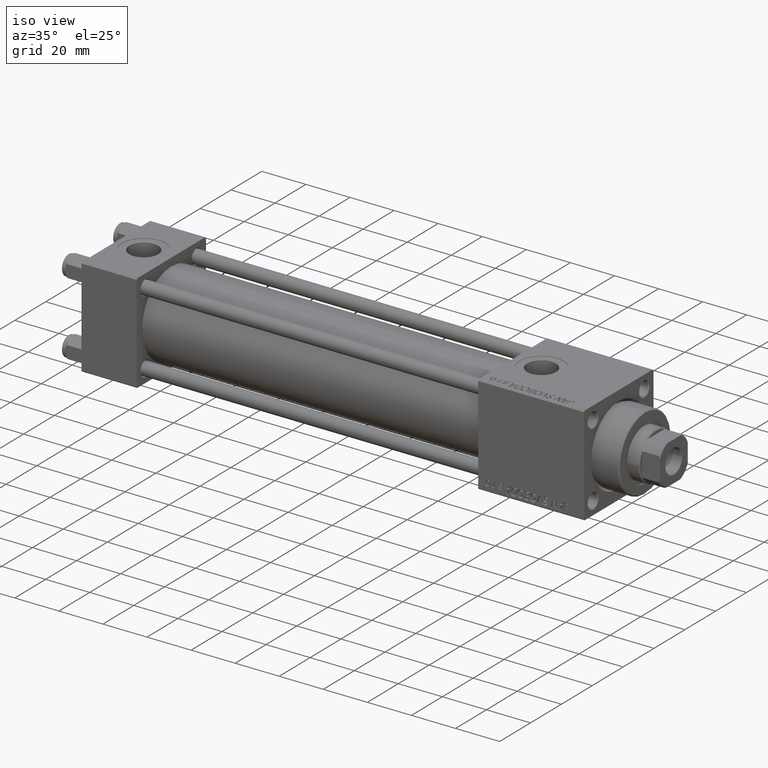
[diagram: clean part render]
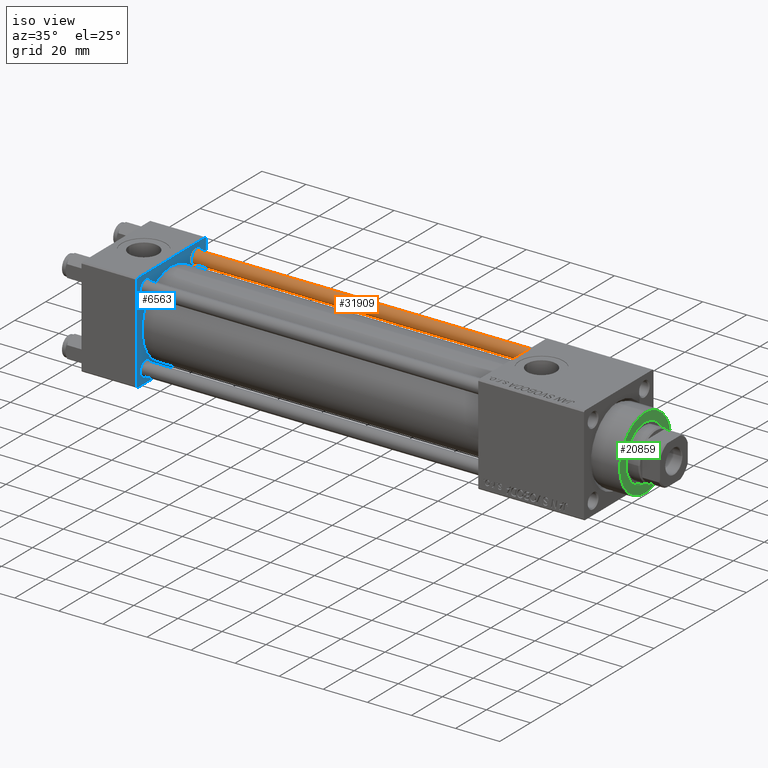
[diagram: same view with three faces highlighted in distinct colors, each labeled with its STEP entity id]
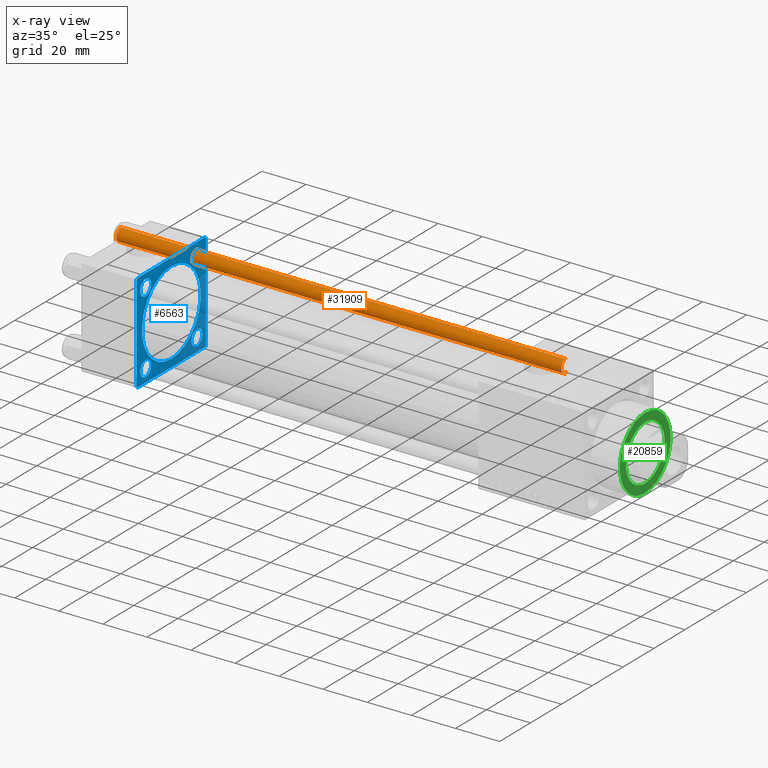
[diagram: x-ray of the same camera — body ghosted, the three highlighted faces saturated]
A machine part, iso view with three faces highlighted in distinct colors.
The next image is the same camera in x-ray (body ghosted, the three faces saturated) — at least one of them is partly hidden behind the body in this view.
Their STEP definitions:

[orange] entity #31909 — the highlighted cylindrical surface (edge-blend (fillet) strip) has radius 3 mm, axis along (-1, 0, 0).
#705 = VERTEX_POINT ( 'NONE', #16305 ) ;
#1947 = VERTEX_POINT ( 'NONE', #28889 ) ;
#3213 = ORIENTED_EDGE ( 'NONE', *, *, #46983, .T. ) ;
#3288 = EDGE_CURVE ( 'NONE', #12715, #42295, #29601, .T. ) ;
#5066 = ORIENTED_EDGE ( 'NONE', *, *, #45666, .F. ) ;
#7607 = LINE ( 'NONE', #8389, #25537 ) ;
#8389 = CARTESIAN_POINT ( 'NONE',  ( -3.000000000000000444, 0.000000000000000000, 203.0000000000000000 ) ) ;
#9184 = CARTESIAN_POINT ( 'NONE',  ( 3.000000000000000444, 3.673940397442059868E-16, 0.5000000000001114664 ) ) ;
#11752 = VECTOR ( 'NONE', #18375, 1000.000000000000000 ) ;
#12715 = VERTEX_POINT ( 'NONE', #26862 ) ;
#15765 = DIRECTION ( 'NONE',  ( 1.000000000000000000, 0.000000000000000000, 0.000000000000000000 ) ) ;
#16305 = CARTESIAN_POINT ( 'NONE',  ( -3.000000000000000444, 0.000000000000000000, 202.5000000000000853 ) ) ;
#17012 = CIRCLE ( 'NONE', #36401, 3.000000000000000444 ) ;
#18375 = DIRECTION ( 'NONE',  ( -0.000000000000000000, -0.000000000000000000, -1.000000000000000000 ) ) ;
#19369 = CARTESIAN_POINT ( 'NONE',  ( 0.000000000000000000, 0.000000000000000000, 0.5000000000001114664 ) ) ;
#21055 = ORIENTED_EDGE ( 'NONE', *, *, #3288, .T. ) ;
#22129 = EDGE_LOOP ( 'NONE', ( #5066, #3213, #37280, #21055 ) ) ;
#24565 = AXIS2_PLACEMENT_3D ( 'NONE', #19369, #35443, #51514 ) ;
#25537 = VECTOR ( 'NONE', #48220, 1000.000000000000000 ) ;
#26568 = EDGE_CURVE ( 'NONE', #705, #12715, #7607, .T. ) ;
#26862 = CARTESIAN_POINT ( 'NONE',  ( -3.000000000000000444, 0.000000000000000000, 0.5000000000001114664 ) ) ;
#28889 = CARTESIAN_POINT ( 'NONE',  ( 3.000000000000000444, 3.673940397442059868E-16, 202.5000000000000853 ) ) ;
#29601 = CIRCLE ( 'NONE', #24565, 3.000000000000000444 ) ;
#29724 = LINE ( 'NONE', #49742, #11752 ) ;
#31331 = DIRECTION ( 'NONE',  ( 0.000000000000000000, 0.000000000000000000, -1.000000000000000000 ) ) ;
#31909 = ADVANCED_FACE ( 'NONE', ( #37421 ), #38185, .T. ) ;
#33975 = CARTESIAN_POINT ( 'NONE',  ( 0.000000000000000000, 0.000000000000000000, 203.0000000000000000 ) ) ;
#35443 = DIRECTION ( 'NONE',  ( -0.000000000000000000, -0.000000000000000000, 1.000000000000000000 ) ) ;
#36401 = AXIS2_PLACEMENT_3D ( 'NONE', #38973, #31331, #15765 ) ;
#37280 = ORIENTED_EDGE ( 'NONE', *, *, #26568, .T. ) ;
#37421 = FACE_OUTER_BOUND ( 'NONE', #22129, .T. ) ;
#37923 = DIRECTION ( 'NONE',  ( -0.000000000000000000, -0.000000000000000000, -1.000000000000000000 ) ) ;
#38185 = CYLINDRICAL_SURFACE ( 'NONE', #51000, 3.000000000000000444 ) ;
#38973 = CARTESIAN_POINT ( 'NONE',  ( 0.000000000000000000, 0.000000000000000000, 202.5000000000000853 ) ) ;
#42295 = VERTEX_POINT ( 'NONE', #9184 ) ;
#45666 = EDGE_CURVE ( 'NONE', #1947, #42295, #29724, .T. ) ;
#45839 = DIRECTION ( 'NONE',  ( -1.000000000000000000, 0.000000000000000000, 0.000000000000000000 ) ) ;
#46983 = EDGE_CURVE ( 'NONE', #1947, #705, #17012, .T. ) ;
#48220 = DIRECTION ( 'NONE',  ( -0.000000000000000000, -0.000000000000000000, -1.000000000000000000 ) ) ;
#49742 = CARTESIAN_POINT ( 'NONE',  ( 3.000000000000000444, 3.673940397442059868E-16, 203.0000000000000000 ) ) ;
#51000 = AXIS2_PLACEMENT_3D ( 'NONE', #33975, #37923, #45839 ) ;
#51514 = DIRECTION ( 'NONE',  ( 1.000000000000000000, 0.000000000000000000, 0.000000000000000000 ) ) ;

[blue] entity #6563 — the highlighted planar face has unit normal (-1, 0, 0).
#195 = ORIENTED_EDGE ( 'NONE', *, *, #29900, .T. ) ;
#254 = ORIENTED_EDGE ( 'NONE', *, *, #37313, .F. ) ;
#560 = DIRECTION ( 'NONE',  ( -1.000000000000000000, 0.000000000000000000, -0.000000000000000000 ) ) ;
#719 = CARTESIAN_POINT ( 'NONE',  ( 25.00000000000000000, 22.50000000000000000, 21.99999999999999645 ) ) ;
#765 = CARTESIAN_POINT ( 'NONE',  ( 25.00000000000000000, 22.50000000000000000, -21.99999999999996803 ) ) ;
#1229 = EDGE_CURVE ( 'NONE', #30752, #23117, #39581, .T. ) ;
#2399 = EDGE_LOOP ( 'NONE', ( #4211, #254 ) ) ;
#2474 = DIRECTION ( 'NONE',  ( 0.000000000000000000, 0.000000000000000000, 1.000000000000000000 ) ) ;
#2737 = CARTESIAN_POINT ( 'NONE',  ( 25.00000000000000000, -16.59999999999999076, -16.60000000000000853 ) ) ;
#3064 = AXIS2_PLACEMENT_3D ( 'NONE', #17935, #42959, #50351 ) ;
#4195 = EDGE_CURVE ( 'NONE', #10037, #34024, #5180, .T. ) ;
#4211 = ORIENTED_EDGE ( 'NONE', *, *, #45188, .F. ) ;
#4625 = CARTESIAN_POINT ( 'NONE',  ( 25.00000000000000000, 21.99999999999999289, 22.50000000000000355 ) ) ;
#5180 = CIRCLE ( 'NONE', #50661, 3.500000000000034195 ) ;
#5734 = CARTESIAN_POINT ( 'NONE',  ( 25.00000000000000000, 22.50000000000000000, -22.49999999999999645 ) ) ;
#6353 = AXIS2_PLACEMENT_3D ( 'NONE', #36223, #20151, #12742 ) ;
#6563 = ADVANCED_FACE ( 'NONE', ( #46241, #34122, #14082, #14332, #46501, #10362 ), #38587, .F. ) ;
#6844 = EDGE_CURVE ( 'NONE', #43383, #14283, #6976, .T. ) ;
#6976 = LINE ( 'NONE', #47076, #11179 ) ;
#6994 = VERTEX_POINT ( 'NONE', #24139 ) ;
#7441 = DIRECTION ( 'NONE',  ( 0.000000000000000000, -0.7071067811865474617, 0.7071067811865474617 ) ) ;
#7564 = DIRECTION ( 'NONE',  ( -0.000000000000000000, 0.7071067811865426878, 0.7071067811865524577 ) ) ;
#9033 = EDGE_CURVE ( 'NONE', #46363, #26833, #51691, .T. ) ;
#9112 = CARTESIAN_POINT ( 'NONE',  ( 25.00000000000000000, -16.59999999999999076, 13.09999999999997300 ) ) ;
#9568 = DIRECTION ( 'NONE',  ( 0.000000000000000000, 0.000000000000000000, -1.000000000000000000 ) ) ;
#9775 = AXIS2_PLACEMENT_3D ( 'NONE', #36413, #47294, #14883 ) ;
#9959 = CARTESIAN_POINT ( 'NONE',  ( 25.00000000000000000, 16.59999999999999787, 20.10000000000003340 ) ) ;
#10028 = CIRCLE ( 'NONE', #27742, 19.00000000000000000 ) ;
#10037 = VERTEX_POINT ( 'NONE', #34292 ) ;
#10362 = FACE_OUTER_BOUND ( 'NONE', #29894, .T. ) ;
#10439 = CARTESIAN_POINT ( 'NONE',  ( 25.00000000000000000, 16.59999999999999787, -20.10000000000003340 ) ) ;
#11179 = VECTOR ( 'NONE', #18619, 999.9999999999998863 ) ;
#11276 = CARTESIAN_POINT ( 'NONE',  ( 25.00000000000000000, 22.50000000000000000, -21.99999999999998224 ) ) ;
#11432 = EDGE_CURVE ( 'NONE', #34024, #10037, #50937, .T. ) ;
#12364 = VERTEX_POINT ( 'NONE', #20504 ) ;
#12677 = EDGE_CURVE ( 'NONE', #6994, #48398, #23175, .T. ) ;
#12742 = DIRECTION ( 'NONE',  ( 0.000000000000000000, 0.000000000000000000, 1.000000000000000000 ) ) ;
#13711 = VECTOR ( 'NONE', #7441, 1000.000000000000114 ) ;
#13946 = VECTOR ( 'NONE', #50167, 1000.000000000000000 ) ;
#14082 = FACE_BOUND ( 'NONE', #41756, .T. ) ;
#14283 = VERTEX_POINT ( 'NONE', #30638 ) ;
#14319 = CARTESIAN_POINT ( 'NONE',  ( 25.00000000000000000, 22.50000000000000000, 22.50000000000000355 ) ) ;
#14332 = FACE_BOUND ( 'NONE', #31236, .T. ) ;
#14589 = CARTESIAN_POINT ( 'NONE',  ( 25.00000000000000000, 0.000000000000000000, 0.000000000000000000 ) ) ;
#14883 = DIRECTION ( 'NONE',  ( 0.000000000000000000, 0.000000000000000000, 1.000000000000000000 ) ) ;
#15701 = CIRCLE ( 'NONE', #33393, 19.00000000000000000 ) ;
#16567 = CIRCLE ( 'NONE', #3064, 3.500000000000031086 ) ;
#17080 = EDGE_CURVE ( 'NONE', #26833, #46363, #34154, .T. ) ;
#17149 = EDGE_CURVE ( 'NONE', #14283, #30752, #37010, .T. ) ;
#17460 = ORIENTED_EDGE ( 'NONE', *, *, #12677, .T. ) ;
#17900 = AXIS2_PLACEMENT_3D ( 'NONE', #14589, #30688, #38839 ) ;
#17935 = CARTESIAN_POINT ( 'NONE',  ( 25.00000000000000000, 16.59999999999999787, 16.60000000000000497 ) ) ;
#17981 = ORIENTED_EDGE ( 'NONE', *, *, #23827, .F. ) ;
#17994 = CARTESIAN_POINT ( 'NONE',  ( 24.99999999999999289, -2.602085213965210642E-15, 0.000000000000000000 ) ) ;
#18583 = EDGE_LOOP ( 'NONE', ( #39627, #195 ) ) ;
#18619 = DIRECTION ( 'NONE',  ( -0.000000000000000000, -0.7071067811865525687, -0.7071067811865425767 ) ) ;
#19194 = EDGE_CURVE ( 'NONE', #31241, #43383, #51946, .T. ) ;
#20151 = DIRECTION ( 'NONE',  ( -1.000000000000000000, 0.000000000000000000, -0.000000000000000000 ) ) ;
#20504 = CARTESIAN_POINT ( 'NONE',  ( 25.00000000000000000, -16.59999999999999076, -20.10000000000003695 ) ) ;
#20762 = DIRECTION ( 'NONE',  ( 0.000000000000000000, 0.000000000000000000, 1.000000000000000000 ) ) ;
#22717 = ORIENTED_EDGE ( 'NONE', *, *, #42982, .F. ) ;
#22815 = DIRECTION ( 'NONE',  ( -1.000000000000000000, 0.000000000000000000, -0.000000000000000000 ) ) ;
#23117 = VERTEX_POINT ( 'NONE', #48694 ) ;
#23175 = LINE ( 'NONE', #11276, #48327 ) ;
#23827 = EDGE_CURVE ( 'NONE', #6994, #23117, #41884, .T. ) ;
#24139 = CARTESIAN_POINT ( 'NONE',  ( 25.00000000000000000, 21.99999999999999289, -22.49999999999999645 ) ) ;
#24141 = CIRCLE ( 'NONE', #51071, 3.500000000000031086 ) ;
#24265 = DIRECTION ( 'NONE',  ( 0.000000000000000000, -1.000000000000000000, -7.709882115452476934E-17 ) ) ;
#25059 = DIRECTION ( 'NONE',  ( 1.000000000000000000, -0.000000000000000000, 0.000000000000000000 ) ) ;
#25503 = VERTEX_POINT ( 'NONE', #27764 ) ;
#26012 = CARTESIAN_POINT ( 'NONE',  ( 25.00000000000000000, 16.59999999999999787, -13.09999999999997300 ) ) ;
#26185 = EDGE_LOOP ( 'NONE', ( #46189, #46174 ) ) ;
#26833 = VERTEX_POINT ( 'NONE', #10439 ) ;
#27157 = VERTEX_POINT ( 'NONE', #51493 ) ;
#27522 = LINE ( 'NONE', #36194, #13711 ) ;
#27742 = AXIS2_PLACEMENT_3D ( 'NONE', #37178, #25059, #28740 ) ;
#27764 = CARTESIAN_POINT ( 'NONE',  ( 24.99999999999999289, -2.602085213965210642E-15, 19.00000000000000000 ) ) ;
#27833 = VERTEX_POINT ( 'NONE', #30775 ) ;
#28267 = ORIENTED_EDGE ( 'NONE', *, *, #19194, .T. ) ;
#28565 = DIRECTION ( 'NONE',  ( 0.000000000000000000, 0.000000000000000000, 1.000000000000000000 ) ) ;
#28740 = DIRECTION ( 'NONE',  ( 0.000000000000000000, 0.000000000000000000, 1.000000000000000000 ) ) ;
#28821 = CARTESIAN_POINT ( 'NONE',  ( 25.00000000000000000, 16.59999999999999787, -16.60000000000000497 ) ) ;
#28896 = DIRECTION ( 'NONE',  ( -1.000000000000000000, 0.000000000000000000, -0.000000000000000000 ) ) ;
#28967 = AXIS2_PLACEMENT_3D ( 'NONE', #28821, #560, #28565 ) ;
#29599 = DIRECTION ( 'NONE',  ( 0.000000000000000000, 0.000000000000000000, 1.000000000000000000 ) ) ;
#29618 = ORIENTED_EDGE ( 'NONE', *, *, #17149, .T. ) ;
#29894 = EDGE_LOOP ( 'NONE', ( #17981, #17460, #22717, #48262, #28267, #35132, #29618, #38564 ) ) ;
#29900 = EDGE_CURVE ( 'NONE', #50684, #12364, #45019, .T. ) ;
#29959 = DIRECTION ( 'NONE',  ( -1.000000000000000000, 0.000000000000000000, -0.000000000000000000 ) ) ;
#30638 = CARTESIAN_POINT ( 'NONE',  ( 25.00000000000000000, -22.50000000000000000, 22.00000000000000000 ) ) ;
#30688 = DIRECTION ( 'NONE',  ( -1.000000000000000000, 0.000000000000000000, -0.000000000000000000 ) ) ;
#30731 = DIRECTION ( 'NONE',  ( -1.000000000000000000, 0.000000000000000000, -0.000000000000000000 ) ) ;
#30752 = VERTEX_POINT ( 'NONE', #41938 ) ;
#30775 = CARTESIAN_POINT ( 'NONE',  ( 25.00000000000000000, 16.59999999999999787, 13.09999999999997300 ) ) ;
#31236 = EDGE_LOOP ( 'NONE', ( #47977, #40104 ) ) ;
#31241 = VERTEX_POINT ( 'NONE', #4625 ) ;
#32378 = AXIS2_PLACEMENT_3D ( 'NONE', #36811, #28896, #37596 ) ;
#33016 = VECTOR ( 'NONE', #50047, 1000.000000000000000 ) ;
#33046 = CARTESIAN_POINT ( 'NONE',  ( 25.00000000000000000, -22.50000000000000000, 22.50000000000000000 ) ) ;
#33393 = AXIS2_PLACEMENT_3D ( 'NONE', #17994, #33814, #29599 ) ;
#33814 = DIRECTION ( 'NONE',  ( 1.000000000000000000, -0.000000000000000000, 0.000000000000000000 ) ) ;
#34024 = VERTEX_POINT ( 'NONE', #9112 ) ;
#34122 = FACE_BOUND ( 'NONE', #26185, .T. ) ;
#34154 = CIRCLE ( 'NONE', #6353, 3.500000000000031086 ) ;
#34173 = EDGE_CURVE ( 'NONE', #12364, #50684, #24141, .T. ) ;
#34292 = CARTESIAN_POINT ( 'NONE',  ( 25.00000000000000000, -16.59999999999999076, 20.10000000000004050 ) ) ;
#34486 = VERTEX_POINT ( 'NONE', #719 ) ;
#35132 = ORIENTED_EDGE ( 'NONE', *, *, #6844, .T. ) ;
#35271 = VECTOR ( 'NONE', #9568, 1000.000000000000000 ) ;
#35353 = CARTESIAN_POINT ( 'NONE',  ( 25.00000000000000000, 22.50000000000000000, 22.50000000000000355 ) ) ;
#35370 = ORIENTED_EDGE ( 'NONE', *, *, #11432, .T. ) ;
#36194 = CARTESIAN_POINT ( 'NONE',  ( 25.00000000000000000, 21.99999999999999289, 22.50000000000000355 ) ) ;
#36223 = CARTESIAN_POINT ( 'NONE',  ( 25.00000000000000000, 16.59999999999999787, -16.60000000000000497 ) ) ;
#36413 = CARTESIAN_POINT ( 'NONE',  ( 25.00000000000000000, 16.59999999999999787, 16.60000000000000497 ) ) ;
#36811 = CARTESIAN_POINT ( 'NONE',  ( 25.00000000000000000, -16.59999999999999076, -16.60000000000000853 ) ) ;
#37010 = LINE ( 'NONE', #33046, #13946 ) ;
#37178 = CARTESIAN_POINT ( 'NONE',  ( 24.99999999999999289, -2.602085213965210642E-15, 0.000000000000000000 ) ) ;
#37313 = EDGE_CURVE ( 'NONE', #27157, #25503, #15701, .T. ) ;
#37458 = EDGE_CURVE ( 'NONE', #27833, #49716, #46827, .T. ) ;
#37596 = DIRECTION ( 'NONE',  ( 0.000000000000000000, 0.000000000000000000, 1.000000000000000000 ) ) ;
#37748 = EDGE_CURVE ( 'NONE', #49716, #27833, #16567, .T. ) ;
#38564 = ORIENTED_EDGE ( 'NONE', *, *, #1229, .T. ) ;
#38587 = PLANE ( 'NONE',  #17900 ) ;
#38839 = DIRECTION ( 'NONE',  ( -0.000000000000000000, 0.000000000000000000, 1.000000000000000000 ) ) ;
#39325 = DIRECTION ( 'NONE',  ( 0.000000000000000000, 0.7071067811865426878, -0.7071067811865524577 ) ) ;
#39581 = LINE ( 'NONE', #48007, #40462 ) ;
#39627 = ORIENTED_EDGE ( 'NONE', *, *, #34173, .T. ) ;
#40104 = ORIENTED_EDGE ( 'NONE', *, *, #37748, .T. ) ;
#40462 = VECTOR ( 'NONE', #39325, 1000.000000000000000 ) ;
#41558 = CARTESIAN_POINT ( 'NONE',  ( 25.00000000000000000, -16.59999999999999076, 16.60000000000000853 ) ) ;
#41756 = EDGE_LOOP ( 'NONE', ( #35370, #49132 ) ) ;
#41878 = DIRECTION ( 'NONE',  ( 0.000000000000000000, 0.000000000000000000, 1.000000000000000000 ) ) ;
#41884 = LINE ( 'NONE', #5734, #33016 ) ;
#41938 = CARTESIAN_POINT ( 'NONE',  ( 25.00000000000000000, -22.50000000000000000, -21.99999999999997158 ) ) ;
#42959 = DIRECTION ( 'NONE',  ( -1.000000000000000000, 0.000000000000000000, -0.000000000000000000 ) ) ;
#42982 = EDGE_CURVE ( 'NONE', #34486, #48398, #46749, .T. ) ;
#43383 = VERTEX_POINT ( 'NONE', #44722 ) ;
#44722 = CARTESIAN_POINT ( 'NONE',  ( 25.00000000000000000, -21.99999999999997868, 22.50000000000000000 ) ) ;
#45019 = CIRCLE ( 'NONE', #32378, 3.500000000000031086 ) ;
#45188 = EDGE_CURVE ( 'NONE', #25503, #27157, #10028, .T. ) ;
#45312 = CARTESIAN_POINT ( 'NONE',  ( 25.00000000000000000, -16.59999999999999076, 16.60000000000000853 ) ) ;
#46174 = ORIENTED_EDGE ( 'NONE', *, *, #9033, .T. ) ;
#46189 = ORIENTED_EDGE ( 'NONE', *, *, #17080, .T. ) ;
#46241 = FACE_BOUND ( 'NONE', #18583, .T. ) ;
#46363 = VERTEX_POINT ( 'NONE', #26012 ) ;
#46501 = FACE_BOUND ( 'NONE', #2399, .T. ) ;
#46749 = LINE ( 'NONE', #14319, #35271 ) ;
#46827 = CIRCLE ( 'NONE', #9775, 3.500000000000031086 ) ;
#47076 = CARTESIAN_POINT ( 'NONE',  ( 25.00000000000000000, -22.50000000000000000, 22.00000000000000000 ) ) ;
#47294 = DIRECTION ( 'NONE',  ( -1.000000000000000000, 0.000000000000000000, -0.000000000000000000 ) ) ;
#47743 = EDGE_CURVE ( 'NONE', #34486, #31241, #27522, .T. ) ;
#47977 = ORIENTED_EDGE ( 'NONE', *, *, #37458, .T. ) ;
#48007 = CARTESIAN_POINT ( 'NONE',  ( 25.00000000000000000, -21.99999999999998579, -22.50000000000000711 ) ) ;
#48262 = ORIENTED_EDGE ( 'NONE', *, *, #47743, .T. ) ;
#48327 = VECTOR ( 'NONE', #7564, 1000.000000000000000 ) ;
#48398 = VERTEX_POINT ( 'NONE', #765 ) ;
#48694 = CARTESIAN_POINT ( 'NONE',  ( 25.00000000000000000, -21.99999999999997158, -22.50000000000000711 ) ) ;
#49132 = ORIENTED_EDGE ( 'NONE', *, *, #4195, .T. ) ;
#49237 = AXIS2_PLACEMENT_3D ( 'NONE', #41558, #29959, #20762 ) ;
#49594 = CARTESIAN_POINT ( 'NONE',  ( 25.00000000000000000, -16.59999999999999076, -13.09999999999997655 ) ) ;
#49716 = VERTEX_POINT ( 'NONE', #9959 ) ;
#49800 = VECTOR ( 'NONE', #24265, 1000.000000000000000 ) ;
#50047 = DIRECTION ( 'NONE',  ( 0.000000000000000000, -1.000000000000000000, -2.312964634635742957E-16 ) ) ;
#50167 = DIRECTION ( 'NONE',  ( 0.000000000000000000, 0.000000000000000000, -1.000000000000000000 ) ) ;
#50351 = DIRECTION ( 'NONE',  ( 0.000000000000000000, 0.000000000000000000, 1.000000000000000000 ) ) ;
#50661 = AXIS2_PLACEMENT_3D ( 'NONE', #45312, #30731, #41878 ) ;
#50684 = VERTEX_POINT ( 'NONE', #49594 ) ;
#50937 = CIRCLE ( 'NONE', #49237, 3.500000000000034195 ) ;
#51071 = AXIS2_PLACEMENT_3D ( 'NONE', #2737, #22815, #2474 ) ;
#51493 = CARTESIAN_POINT ( 'NONE',  ( 24.99999999999999289, -2.752562955852396712E-16, -19.00000000000000000 ) ) ;
#51691 = CIRCLE ( 'NONE', #28967, 3.500000000000031086 ) ;
#51946 = LINE ( 'NONE', #35353, #49800 ) ;

[green] entity #20859 — the highlighted planar face has unit normal (1, 0, 0).
#1721 = CARTESIAN_POINT ( 'NONE',  ( -16.49999999999999289, 0.000000000000000000, 40.70000000000000284 ) ) ;
#2381 = CARTESIAN_POINT ( 'NONE',  ( 16.49999999999999289, 2.051283388571816493E-15, 40.70000000000000284 ) ) ;
#2706 = VERTEX_POINT ( 'NONE', #34467 ) ;
#3984 = DIRECTION ( 'NONE',  ( 1.000000000000000000, 0.000000000000000000, 0.000000000000000000 ) ) ;
#4545 = CIRCLE ( 'NONE', #39072, 16.49999999999999289 ) ;
#4721 = EDGE_CURVE ( 'NONE', #44944, #20509, #21247, .T. ) ;
#5533 = DIRECTION ( 'NONE',  ( 1.000000000000000000, 0.000000000000000000, 0.000000000000000000 ) ) ;
#5772 = DIRECTION ( 'NONE',  ( 1.000000000000000000, 0.000000000000000000, 0.000000000000000000 ) ) ;
#7942 = CARTESIAN_POINT ( 'NONE',  ( 0.000000000000000000, 0.000000000000000000, 40.70000000000000284 ) ) ;
#9300 = ORIENTED_EDGE ( 'NONE', *, *, #4721, .T. ) ;
#11023 = AXIS2_PLACEMENT_3D ( 'NONE', #46939, #30080, #18736 ) ;
#14571 = ORIENTED_EDGE ( 'NONE', *, *, #30753, .F. ) ;
#17665 = CARTESIAN_POINT ( 'NONE',  ( 0.000000000000000000, 0.000000000000000000, 40.70000000000000284 ) ) ;
#18242 = ORIENTED_EDGE ( 'NONE', *, *, #28468, .T. ) ;
#18736 = DIRECTION ( 'NONE',  ( 1.000000000000000000, 0.000000000000000000, -0.000000000000000000 ) ) ;
#19819 = CIRCLE ( 'NONE', #40010, 12.50000000000000000 ) ;
#20509 = VERTEX_POINT ( 'NONE', #1721 ) ;
#20859 = ADVANCED_FACE ( 'NONE', ( #26651, #30599 ), #22442, .T. ) ;
#21247 = CIRCLE ( 'NONE', #33854, 16.49999999999999289 ) ;
#22442 = PLANE ( 'NONE',  #11023 ) ;
#26651 = FACE_BOUND ( 'NONE', #40594, .T. ) ;
#28468 = EDGE_CURVE ( 'NONE', #20509, #44944, #4545, .T. ) ;
#29832 = VERTEX_POINT ( 'NONE', #32590 ) ;
#30080 = DIRECTION ( 'NONE',  ( 0.000000000000000000, 0.000000000000000000, 1.000000000000000000 ) ) ;
#30599 = FACE_OUTER_BOUND ( 'NONE', #48699, .T. ) ;
#30753 = EDGE_CURVE ( 'NONE', #29832, #2706, #19819, .T. ) ;
#30950 = AXIS2_PLACEMENT_3D ( 'NONE', #42261, #41754, #46745 ) ;
#32398 = ORIENTED_EDGE ( 'NONE', *, *, #39497, .F. ) ;
#32590 = CARTESIAN_POINT ( 'NONE',  ( -12.50000000000000000, 1.530808498934191521E-15, 40.70000000000000284 ) ) ;
#33854 = AXIS2_PLACEMENT_3D ( 'NONE', #7942, #40123, #3984 ) ;
#34467 = CARTESIAN_POINT ( 'NONE',  ( 12.50000000000000000, 0.000000000000000000, 40.70000000000000284 ) ) ;
#34539 = CARTESIAN_POINT ( 'NONE',  ( 0.000000000000000000, 0.000000000000000000, 40.70000000000000284 ) ) ;
#38503 = CIRCLE ( 'NONE', #30950, 12.50000000000000000 ) ;
#39072 = AXIS2_PLACEMENT_3D ( 'NONE', #17665, #41922, #5772 ) ;
#39497 = EDGE_CURVE ( 'NONE', #2706, #29832, #38503, .T. ) ;
#40010 = AXIS2_PLACEMENT_3D ( 'NONE', #34539, #45365, #5533 ) ;
#40123 = DIRECTION ( 'NONE',  ( 0.000000000000000000, 0.000000000000000000, 1.000000000000000000 ) ) ;
#40594 = EDGE_LOOP ( 'NONE', ( #32398, #14571 ) ) ;
#41754 = DIRECTION ( 'NONE',  ( 0.000000000000000000, 0.000000000000000000, 1.000000000000000000 ) ) ;
#41922 = DIRECTION ( 'NONE',  ( 0.000000000000000000, 0.000000000000000000, 1.000000000000000000 ) ) ;
#42261 = CARTESIAN_POINT ( 'NONE',  ( 0.000000000000000000, 0.000000000000000000, 40.70000000000000284 ) ) ;
#44944 = VERTEX_POINT ( 'NONE', #2381 ) ;
#45365 = DIRECTION ( 'NONE',  ( 0.000000000000000000, 0.000000000000000000, 1.000000000000000000 ) ) ;
#46745 = DIRECTION ( 'NONE',  ( 1.000000000000000000, 0.000000000000000000, 0.000000000000000000 ) ) ;
#46939 = CARTESIAN_POINT ( 'NONE',  ( 0.000000000000000000, 0.000000000000000000, 40.70000000000000284 ) ) ;
#48699 = EDGE_LOOP ( 'NONE', ( #18242, #9300 ) ) ;